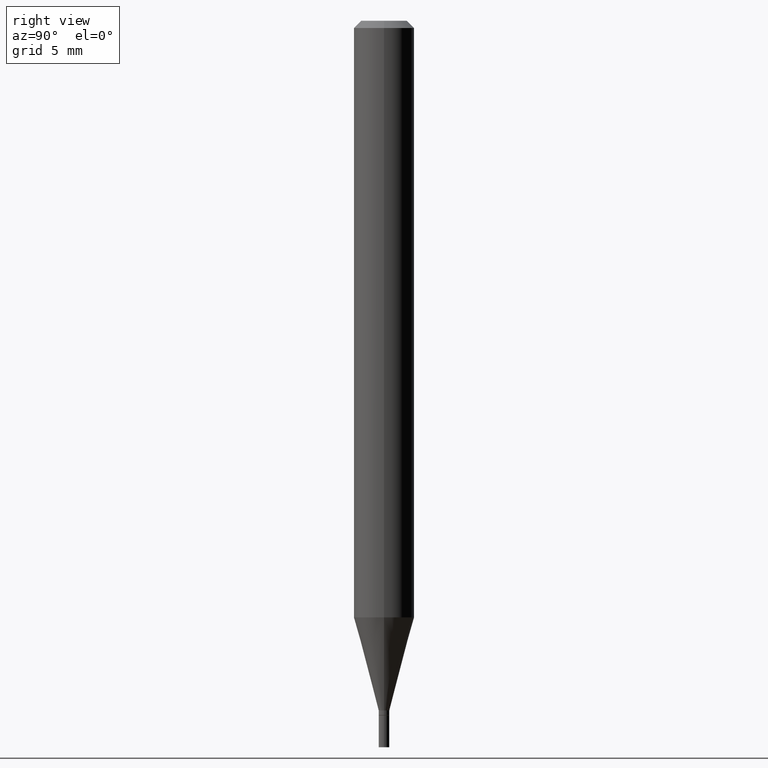
[diagram: clean part render]
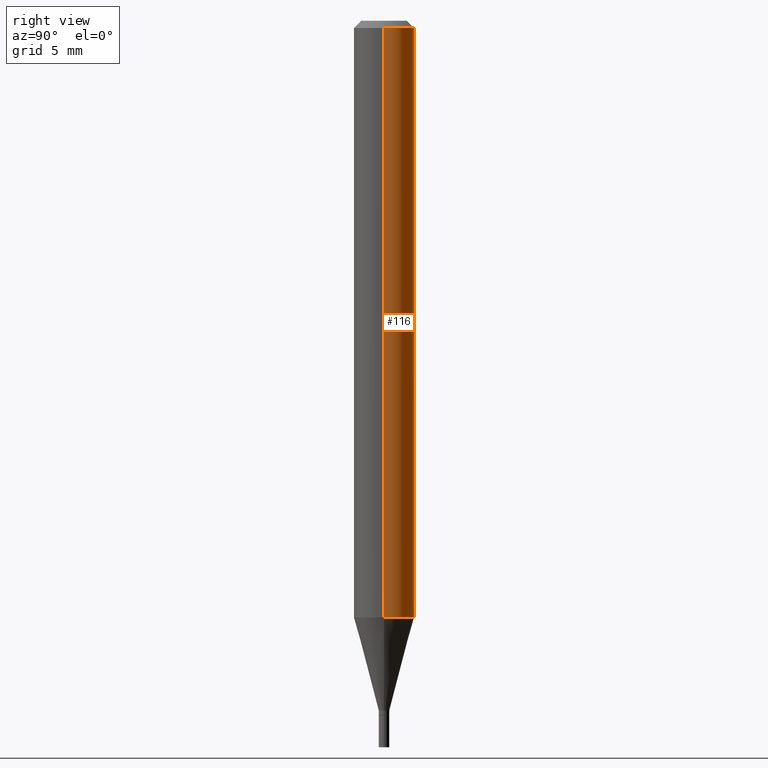
[diagram: same view with one face highlighted and labeled with its STEP entity id]
A machine part, right view. The second image highlights one B-rep face of the part: STEP entity #116.
In plain terms, the highlighted cylindrical surface (edge-blend (fillet) strip) has radius 1.5875 mm, axis along (-0, 0, 1).
Its self-contained STEP definition (entity closure, byte-faithful):
#2 = CARTESIAN_POINT ( 'NONE',  ( -0.06250000000000000000, -1.732499180378870171E-15, -0.01499999999999999944 ) ) ;
#9 = CARTESIAN_POINT ( 'NONE',  ( -0.06250000000000000000, 4.440892098500626162E-16, -3.074334431409316114E-30 ) ) ;
#15 = ORIENTED_EDGE ( 'NONE', *, *, #160, .F. ) ;
#25 = EDGE_LOOP ( 'NONE', ( #149, #447, #15, #166 ) ) ;
#44 = VERTEX_POINT ( 'NONE', #287 ) ;
#60 = AXIS2_PLACEMENT_3D ( 'NONE', #167, #103, #245 ) ;
#89 = CIRCLE ( 'NONE', #60, 0.06250000000000000000 ) ;
#95 = CARTESIAN_POINT ( 'NONE',  ( 0.000000000000000000, 0.000000000000000000, 0.000000000000000000 ) ) ;
#103 = DIRECTION ( 'NONE',  ( -2.445468806185136597E-29, 3.491481338843145583E-15, 1.000000000000000000 ) ) ;
#116 = ADVANCED_FACE ( 'NONE', ( #429 ), #383, .T. ) ;
#129 = CARTESIAN_POINT ( 'NONE',  ( 0.06250000000000000000, -4.364351673553916694E-16, 3.047610484872459871E-30 ) ) ;
#136 = DIRECTION ( 'NONE',  ( 1.000000000000000000, -6.982962677686266711E-15, 4.876176775795935793E-29 ) ) ;
#149 = ORIENTED_EDGE ( 'NONE', *, *, #169, .T. ) ;
#158 = CIRCLE ( 'NONE', #219, 0.06250000000000000000 ) ;
#160 = EDGE_CURVE ( 'NONE', #272, #285, #158, .T. ) ;
#166 = ORIENTED_EDGE ( 'NONE', *, *, #328, .F. ) ;
#167 = CARTESIAN_POINT ( 'NONE',  ( 3.012326967607737433E-29, -4.300804560375218494E-15, -1.231799383410203452 ) ) ;
#169 = EDGE_CURVE ( 'NONE', #44, #212, #89, .T. ) ;
#174 = DIRECTION ( 'NONE',  ( -2.445468806185136597E-29, 3.491481338843145583E-15, 1.000000000000000000 ) ) ;
#194 = AXIS2_PLACEMENT_3D ( 'NONE', #95, #318, #136 ) ;
#198 = LINE ( 'NONE', #129, #408 ) ;
#212 = VERTEX_POINT ( 'NONE', #359 ) ;
#218 = CARTESIAN_POINT ( 'NONE',  ( 3.668203209277705088E-31, -5.237222008264718399E-17, -0.01499999999999999944 ) ) ;
#219 = AXIS2_PLACEMENT_3D ( 'NONE', #218, #174, #313 ) ;
#224 = LINE ( 'NONE', #9, #336 ) ;
#231 = DIRECTION ( 'NONE',  ( -2.445468806185136877E-29, 3.491481338843145188E-15, 1.000000000000000000 ) ) ;
#245 = DIRECTION ( 'NONE',  ( 1.000000000000000000, -6.982962677686262766E-15, 0.000000000000000000 ) ) ;
#260 = CARTESIAN_POINT ( 'NONE',  ( 0.06250000000000000000, -4.888073874380388472E-16, -0.01499999999999999944 ) ) ;
#272 = VERTEX_POINT ( 'NONE', #260 ) ;
#285 = VERTEX_POINT ( 'NONE', #2 ) ;
#287 = CARTESIAN_POINT ( 'NONE',  ( 0.06249999999999997918, -4.737239727730610164E-15, -1.231799383410203452 ) ) ;
#313 = DIRECTION ( 'NONE',  ( 1.000000000000000000, -6.982962677686266711E-15, 0.000000000000000000 ) ) ;
#318 = DIRECTION ( 'NONE',  ( -2.445468806185136597E-29, 3.491481338843145583E-15, 1.000000000000000000 ) ) ;
#328 = EDGE_CURVE ( 'NONE', #44, #272, #198, .T. ) ;
#336 = VECTOR ( 'NONE', #344, 39.37007874015748143 ) ;
#344 = DIRECTION ( 'NONE',  ( -2.445468806185136877E-29, 3.491481338843145188E-15, 1.000000000000000000 ) ) ;
#359 = CARTESIAN_POINT ( 'NONE',  ( -0.06249999999999997918, -3.856715350525155878E-15, -1.231799383410203452 ) ) ;
#383 = CYLINDRICAL_SURFACE ( 'NONE', #194, 0.06250000000000000000 ) ;
#408 = VECTOR ( 'NONE', #231, 39.37007874015748143 ) ;
#428 = EDGE_CURVE ( 'NONE', #212, #285, #224, .T. ) ;
#429 = FACE_OUTER_BOUND ( 'NONE', #25, .T. ) ;
#447 = ORIENTED_EDGE ( 'NONE', *, *, #428, .T. ) ;